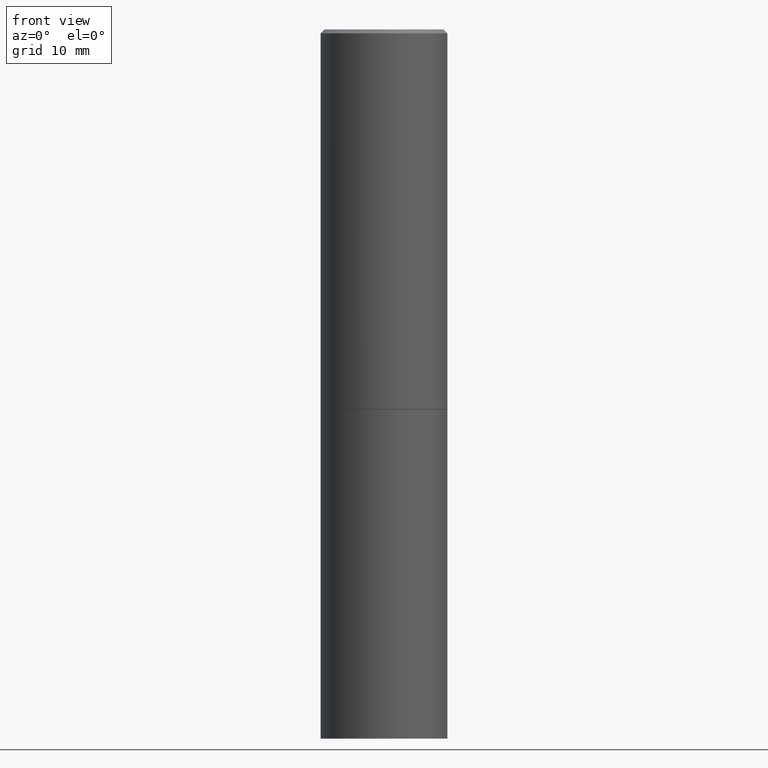
[diagram: clean part render]
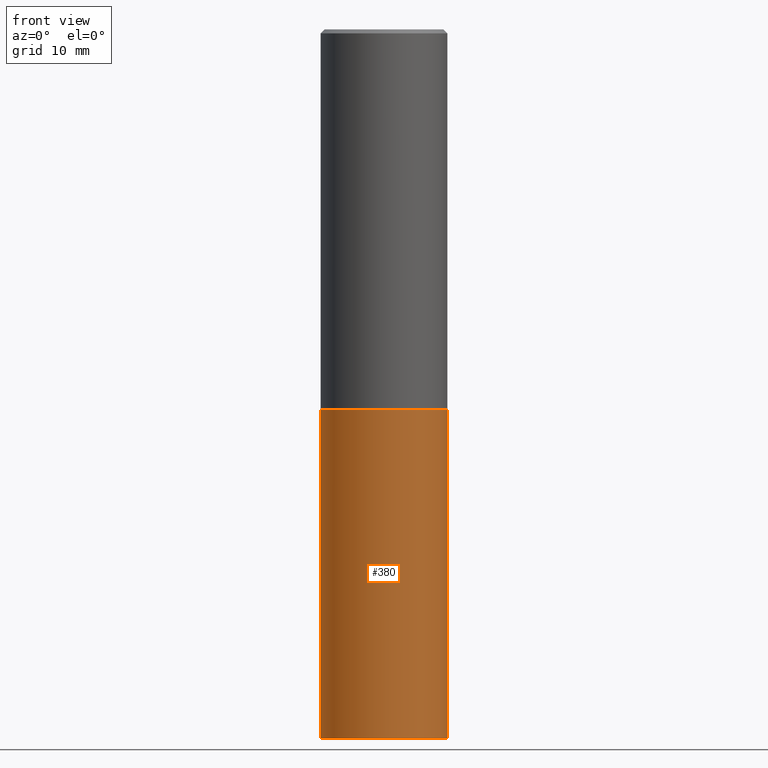
[diagram: same view with one face highlighted and labeled with its STEP entity id]
A machine part, front view. The second image highlights one B-rep face of the part: STEP entity #380.
In plain terms, the highlighted cylindrical surface (partial cylindrical patch) has radius 7.9375 mm, axis along (-0, 0, 1).
Its self-contained STEP definition (entity closure, byte-faithful):
#27 = CIRCLE ( 'NONE', #277, 0.3125000000000000000 ) ;
#38 = VERTEX_POINT ( 'NONE', #208 ) ;
#46 = CARTESIAN_POINT ( 'NONE',  ( 8.559140821647976968E-29, -1.222018468595100934E-14, -3.500000000000000000 ) ) ;
#47 = EDGE_CURVE ( 'NONE', #153, #38, #27, .T. ) ;
#55 = VERTEX_POINT ( 'NONE', #319 ) ;
#56 = LINE ( 'NONE', #84, #358 ) ;
#67 = EDGE_LOOP ( 'NONE', ( #265, #70, #200, #388 ) ) ;
#70 = ORIENTED_EDGE ( 'NONE', *, *, #47, .T. ) ;
#84 = CARTESIAN_POINT ( 'NONE',  ( 0.3125000000000000000, -2.182175836776958347E-15, 1.523805242436230075E-29 ) ) ;
#98 = DIRECTION ( 'NONE',  ( -2.445468806185136597E-29, 3.491481338843145583E-15, 1.000000000000000000 ) ) ;
#114 = DIRECTION ( 'NONE',  ( 1.000000000000000000, -6.982962677686269077E-15, 0.000000000000000000 ) ) ;
#125 = DIRECTION ( 'NONE',  ( -2.445468806185136877E-29, 3.491481338843145188E-15, 1.000000000000000000 ) ) ;
#126 = DIRECTION ( 'NONE',  ( 1.000000000000000000, -6.982962677686265133E-15, 0.000000000000000000 ) ) ;
#128 = VECTOR ( 'NONE', #425, 39.37007874015748143 ) ;
#134 = CARTESIAN_POINT ( 'NONE',  ( -0.3125000000000000000, -7.162910048890640155E-15, -1.874999999999999778 ) ) ;
#153 = VERTEX_POINT ( 'NONE', #284 ) ;
#155 = CARTESIAN_POINT ( 'NONE',  ( -0.3125000000000000000, 2.220446049250313081E-15, -1.537167215704658232E-29 ) ) ;
#168 = EDGE_CURVE ( 'NONE', #153, #309, #429, .T. ) ;
#184 = EDGE_CURVE ( 'NONE', #38, #55, #56, .T. ) ;
#200 = ORIENTED_EDGE ( 'NONE', *, *, #184, .T. ) ;
#208 = CARTESIAN_POINT ( 'NONE',  ( 0.3125000000000000000, -1.440236052272796769E-14, -3.500000000000000000 ) ) ;
#222 = EDGE_CURVE ( 'NONE', #309, #55, #372, .T. ) ;
#229 = DIRECTION ( 'NONE',  ( 1.000000000000000000, -6.982962677686266711E-15, 4.876176775795936353E-29 ) ) ;
#254 = CARTESIAN_POINT ( 'NONE',  ( 4.585254011597130558E-29, -6.546527510330897918E-15, -1.874999999999999778 ) ) ;
#261 = FACE_OUTER_BOUND ( 'NONE', #67, .T. ) ;
#265 = ORIENTED_EDGE ( 'NONE', *, *, #168, .F. ) ;
#277 = AXIS2_PLACEMENT_3D ( 'NONE', #46, #420, #114 ) ;
#281 = AXIS2_PLACEMENT_3D ( 'NONE', #298, #98, #229 ) ;
#284 = CARTESIAN_POINT ( 'NONE',  ( -0.3125000000000000000, -7.162910048890640155E-15, -3.500000000000000000 ) ) ;
#298 = CARTESIAN_POINT ( 'NONE',  ( 0.000000000000000000, 0.000000000000000000, 0.000000000000000000 ) ) ;
#309 = VERTEX_POINT ( 'NONE', #134 ) ;
#319 = CARTESIAN_POINT ( 'NONE',  ( 0.3125000000000000000, -8.728703347107855476E-15, -1.874999999999999778 ) ) ;
#358 = VECTOR ( 'NONE', #125, 39.37007874015748143 ) ;
#372 = CIRCLE ( 'NONE', #436, 0.3125000000000000000 ) ;
#380 = ADVANCED_FACE ( 'NONE', ( #261 ), #402, .T. ) ;
#388 = ORIENTED_EDGE ( 'NONE', *, *, #222, .F. ) ;
#402 = CYLINDRICAL_SURFACE ( 'NONE', #281, 0.3125000000000000000 ) ;
#420 = DIRECTION ( 'NONE',  ( -2.445468806185136597E-29, 3.491481338843145583E-15, 1.000000000000000000 ) ) ;
#425 = DIRECTION ( 'NONE',  ( -2.445468806185136877E-29, 3.491481338843145188E-15, 1.000000000000000000 ) ) ;
#429 = LINE ( 'NONE', #155, #128 ) ;
#430 = DIRECTION ( 'NONE',  ( -2.445468806185136597E-29, 3.491481338843145583E-15, 1.000000000000000000 ) ) ;
#436 = AXIS2_PLACEMENT_3D ( 'NONE', #254, #430, #126 ) ;